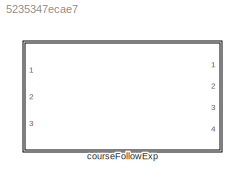
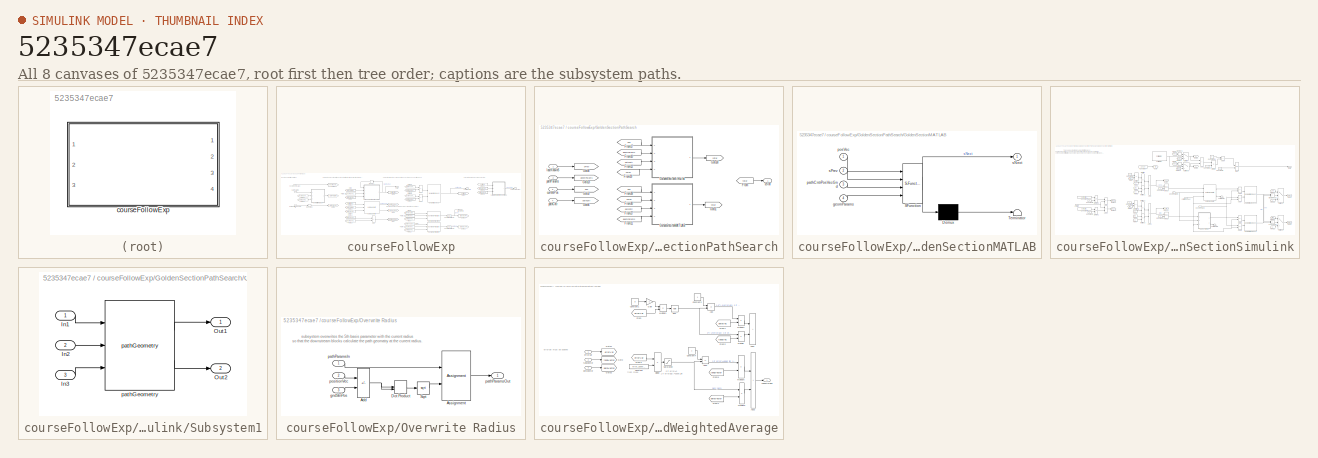
[diagram: thumbnail index - all 8 canvases of the model, root first then tree order]
MODEL slx_5235347ecae7
KIND library
CONFIG AbsTol = auto
CONFIG EnableMultiTasking = off
CONFIG FixedStep = auto
CONFIG MaxStep = auto
CONFIG MinStep = auto
CONFIG RelTol = 1e-3
CONFIG SampleTimeConstraint = Unconstrained
CONFIG Solver = VariableStepAuto
CONFIG SolverName = VariableStepAuto
CONFIG StartTime = 0.0
CONFIG StopTime = 10.0
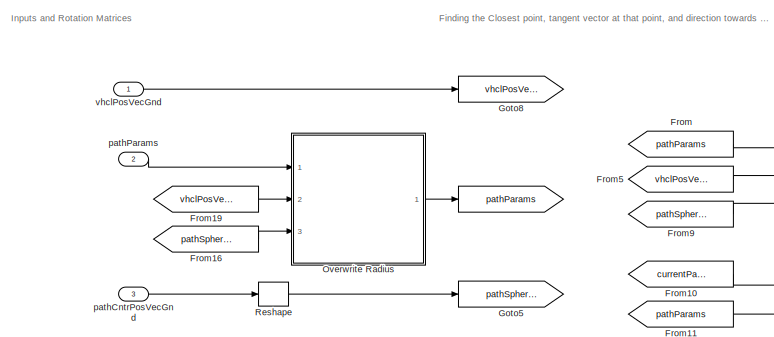
[diagram: courseFollowExp - part 1/3, top left region]
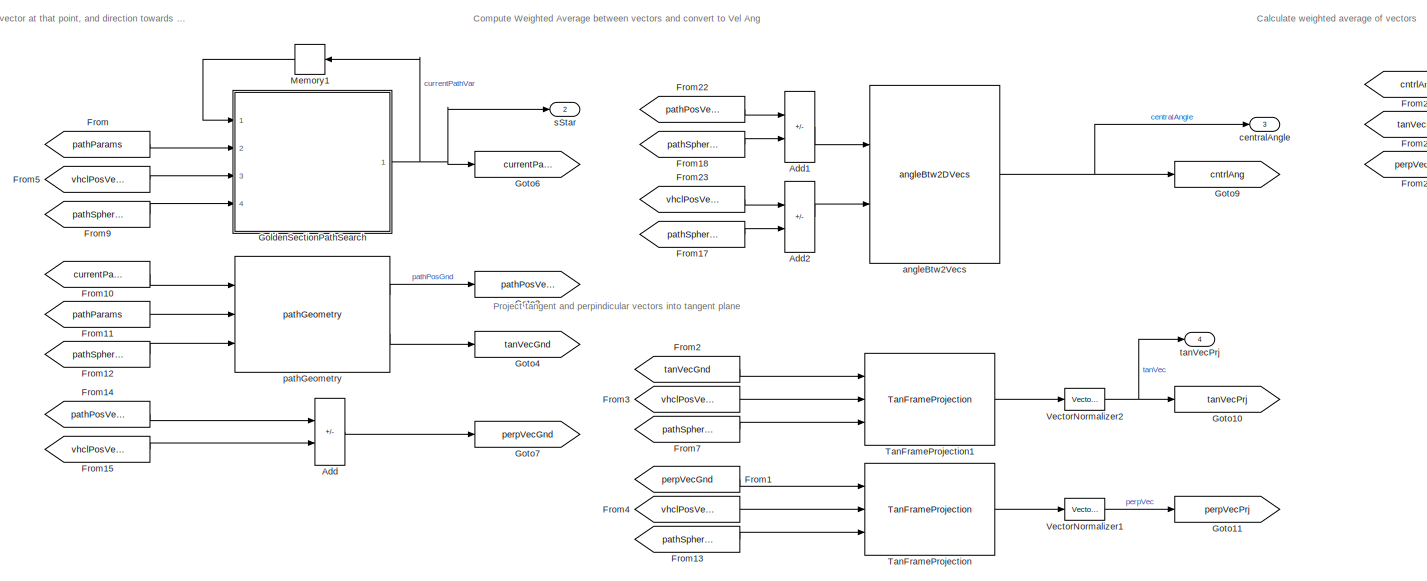
[diagram: courseFollowExp - part 2/3, center side, full height]
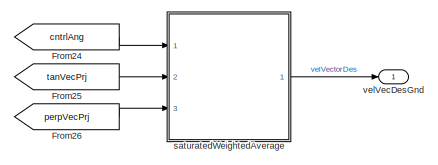
[diagram: courseFollowExp - part 3/3, top right region]
BLOCK [SubSystem] courseFollowExp
  Ports = [3, 4]
  RequestExecContextInheritance = off
BLOCK [Goto] courseFollowExp/ 
  GotoTag = pathParams
BLOCK [Sum] courseFollowExp/Add
  IconShape = rectangular
  Inputs = +-
  Ports = [2, 1]
BLOCK [Sum] courseFollowExp/Add1
  IconShape = rectangular
  Inputs = +-
  Ports = [2, 1]
BLOCK [Sum] courseFollowExp/Add2
  IconShape = rectangular
  Inputs = +-
  Ports = [2, 1]
BLOCK [From] courseFollowExp/From
  GotoTag = pathParams
BLOCK [From] courseFollowExp/From1
  GotoTag = perpVecGnd
BLOCK [From] courseFollowExp/From10
  GotoTag = currentPathVar
BLOCK [From] courseFollowExp/From11
  GotoTag = pathParams
BLOCK [From] courseFollowExp/From12
  GotoTag = pathSphereCntr
BLOCK [From] courseFollowExp/From13
  GotoTag = pathSphereCntr
BLOCK [From] courseFollowExp/From14
  GotoTag = pathPosVecGnd
BLOCK [From] courseFollowExp/From15
  GotoTag = vhclPosVecGnd
BLOCK [From] courseFollowExp/From16
  GotoTag = pathSphereCntr
BLOCK [From] courseFollowExp/From17
  GotoTag = pathSphereCntr
BLOCK [From] courseFollowExp/From18
  GotoTag = pathSphereCntr
BLOCK [From] courseFollowExp/From19
  GotoTag = vhclPosVecGnd
BLOCK [From] courseFollowExp/From2
  GotoTag = tanVecGnd
BLOCK [From] courseFollowExp/From22
  GotoTag = pathPosVecGnd
BLOCK [From] courseFollowExp/From23
  GotoTag = vhclPosVecGnd
BLOCK [From] courseFollowExp/From24
  GotoTag = cntrlAng
BLOCK [From] courseFollowExp/From25
  GotoTag = tanVecPrj
BLOCK [From] courseFollowExp/From26
  GotoTag = perpVecPrj
BLOCK [From] courseFollowExp/From3
  GotoTag = vhclPosVecGnd
BLOCK [From] courseFollowExp/From4
  GotoTag = vhclPosVecGnd
BLOCK [From] courseFollowExp/From5
  GotoTag = vhclPosVecGnd
BLOCK [From] courseFollowExp/From7
  GotoTag = pathSphereCntr
BLOCK [From] courseFollowExp/From9
  GotoTag = pathSphereCntr
BLOCK [SubSystem] courseFollowExp/GoldenSectionPathSearch
  Ports = [4, 1]
  RequestExecContextInheritance = off
  TreatAsAtomicUnit = on
BLOCK [From] courseFollowExp/GoldenSectionPathSearch/From
  GotoTag = sStar
BLOCK [From] courseFollowExp/GoldenSectionPathSearch/From10
  GotoTag = geomParams
BLOCK [From] courseFollowExp/GoldenSectionPathSearch/From11
  Commented = on
  GotoTag = geomParams
BLOCK [From] courseFollowExp/GoldenSectionPathSearch/From12
  GotoTag = pathCntr
BLOCK [From] courseFollowExp/GoldenSectionPathSearch/From17
  GotoTag = pos
BLOCK [From] courseFollowExp/GoldenSectionPathSearch/From27
  Commented = on
  GotoTag = pathCntr
BLOCK [From] courseFollowExp/GoldenSectionPathSearch/From28
  Commented = on
  GotoTag = pos
BLOCK [From] courseFollowExp/GoldenSectionPathSearch/From29
  GotoTag = sPrev
BLOCK [From] courseFollowExp/GoldenSectionPathSearch/From30
  Commented = on
  GotoTag = sPrev
BLOCK [SubSystem] courseFollowExp/GoldenSectionPathSearch/GoldenSectionMATLAB
  Commented = on
  ErrorFcn = Stateflow.Translate.translate
  PermitHierarchicalResolution = ExplicitOnly
  Ports = [4, 1]
  RequestExecContextInheritance = off
  SFBlockType = MATLAB Function
  TreatAsAtomicUnit = on
BLOCK [Demux] courseFollowExp/GoldenSectionPathSearch/GoldenSectionMATLAB/ Demux 
  Outputs = 1
  Ports = [1, 1]
BLOCK [S-Function] courseFollowExp/GoldenSectionPathSearch/GoldenSectionMATLAB/ SFunction 
  EnableBusSupport = off
  FunctionName = sf_sfun
  Parameters = pathVarTol,searchWidth
  PortCounts = [4 2]
  Ports = [4, 2]
  SFcnIsStateOwnerBlock = off
  SFunctionDeploymentMode = off
  Tag = Stateflow S-Function 2
BLOCK [Terminator] courseFollowExp/GoldenSectionPathSearch/GoldenSectionMATLAB/ Terminator 
BLOCK [Inport] courseFollowExp/GoldenSectionPathSearch/GoldenSectionMATLAB/geomParams
  Port = 4
BLOCK [Inport] courseFollowExp/GoldenSectionPathSearch/GoldenSectionMATLAB/pathCntrPosVecGnd
  Port = 3
BLOCK [Inport] courseFollowExp/GoldenSectionPathSearch/GoldenSectionMATLAB/posVec
BLOCK [Outport] courseFollowExp/GoldenSectionPathSearch/GoldenSectionMATLAB/sNext
BLOCK [Inport] courseFollowExp/GoldenSectionPathSearch/GoldenSectionMATLAB/sPrev
  Port = 2
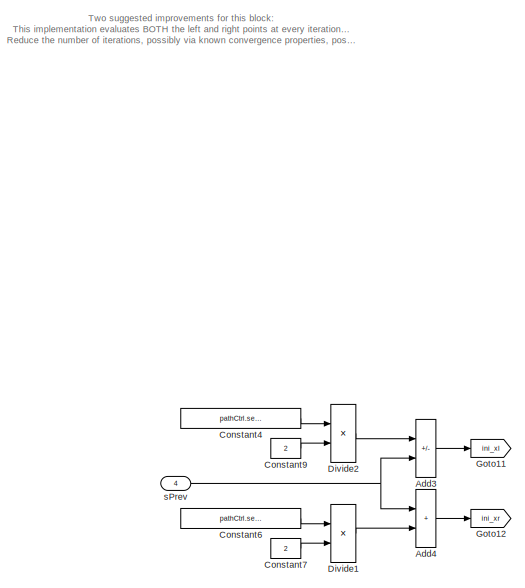
[diagram: courseFollowExp/GoldenSectionPathSearch/GoldenSectionSimulink - part 1/2, left side, full height]
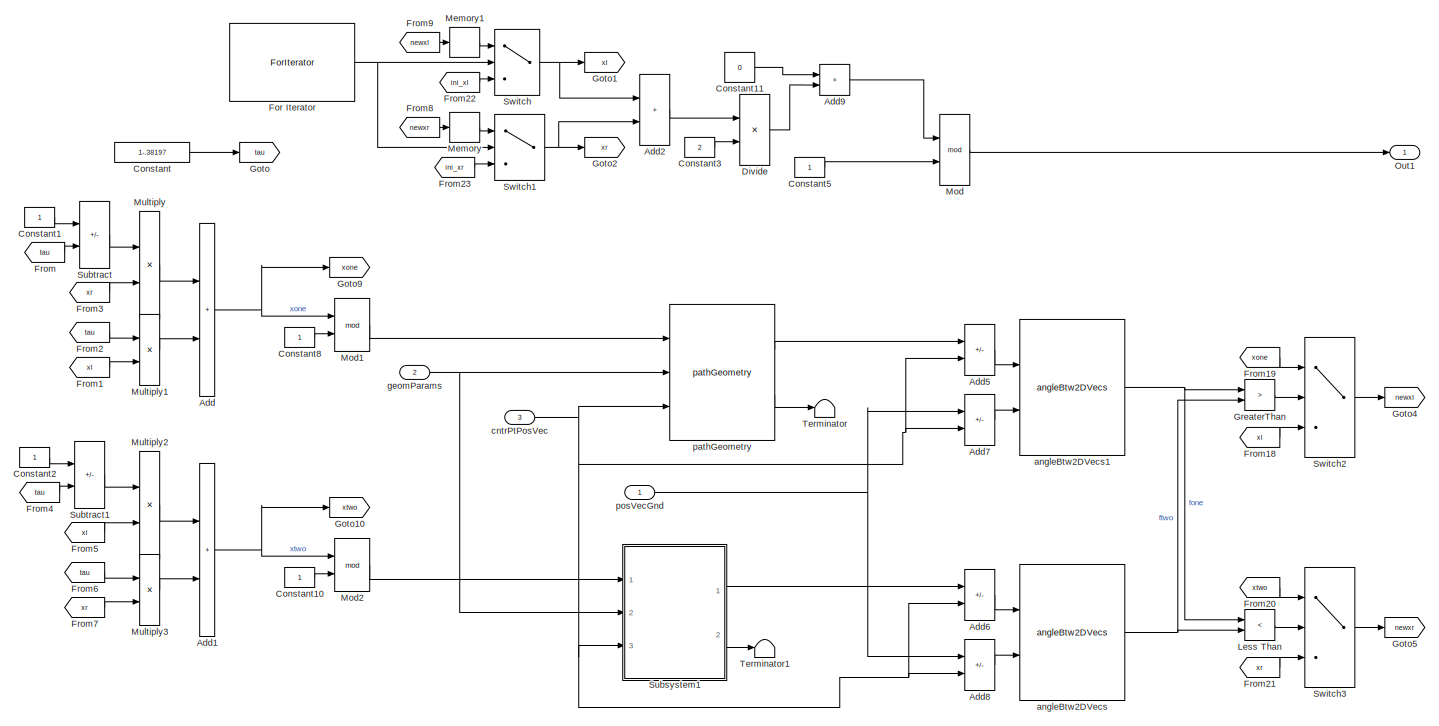
[diagram: courseFollowExp/GoldenSectionPathSearch/GoldenSectionSimulink - part 2/2, center side, full height]
BLOCK [SubSystem] courseFollowExp/GoldenSectionPathSearch/GoldenSectionSimulink
  Ports = [4, 1]
  RequestExecContextInheritance = off
BLOCK [Sum] courseFollowExp/GoldenSectionPathSearch/GoldenSectionSimulink/Add
  IconShape = rectangular
  Ports = [2, 1]
BLOCK [Sum] courseFollowExp/GoldenSectionPathSearch/GoldenSectionSimulink/Add1
  IconShape = rectangular
  Ports = [2, 1]
BLOCK [Sum] courseFollowExp/GoldenSectionPathSearch/GoldenSectionSimulink/Add2
  IconShape = rectangular
  Ports = [2, 1]
BLOCK [Sum] courseFollowExp/GoldenSectionPathSearch/GoldenSectionSimulink/Add3
  IconShape = rectangular
  Inputs = -+
  Ports = [2, 1]
BLOCK [Sum] courseFollowExp/GoldenSectionPathSearch/GoldenSectionSimulink/Add4
  IconShape = rectangular
  Ports = [2, 1]
BLOCK [Sum] courseFollowExp/GoldenSectionPathSearch/GoldenSectionSimulink/Add5
  IconShape = rectangular
  Inputs = +-
  Ports = [2, 1]
BLOCK [Sum] courseFollowExp/GoldenSectionPathSearch/GoldenSectionSimulink/Add6
  IconShape = rectangular
  Inputs = +-
  Ports = [2, 1]
BLOCK [Sum] courseFollowExp/GoldenSectionPathSearch/GoldenSectionSimulink/Add7
  IconShape = rectangular
  Inputs = +-
  Ports = [2, 1]
BLOCK [Sum] courseFollowExp/GoldenSectionPathSearch/GoldenSectionSimulink/Add8
  IconShape = rectangular
  Inputs = +-
  Ports = [2, 1]
BLOCK [Sum] courseFollowExp/GoldenSectionPathSearch/GoldenSectionSimulink/Add9
  IconShape = rectangular
  Ports = [2, 1]
BLOCK [Constant] courseFollowExp/GoldenSectionPathSearch/GoldenSectionSimulink/Constant
  Value = 1-.38197
BLOCK [Constant] courseFollowExp/GoldenSectionPathSearch/GoldenSectionSimulink/Constant1
BLOCK [Constant] courseFollowExp/GoldenSectionPathSearch/GoldenSectionSimulink/Constant10
BLOCK [Constant] courseFollowExp/GoldenSectionPathSearch/GoldenSectionSimulink/Constant11
  Value = 0
BLOCK [Constant] courseFollowExp/GoldenSectionPathSearch/GoldenSectionSimulink/Constant2
BLOCK [Constant] courseFollowExp/GoldenSectionPathSearch/GoldenSectionSimulink/Constant3
  Value = 2
BLOCK [Constant] courseFollowExp/GoldenSectionPathSearch/GoldenSectionSimulink/Constant4
  Value = pathCtrl.searchSize.Value
BLOCK [Constant] courseFollowExp/GoldenSectionPathSearch/GoldenSectionSimulink/Constant5
BLOCK [Constant] courseFollowExp/GoldenSectionPathSearch/GoldenSectionSimulink/Constant6
  Value = pathCtrl.searchSize.Value
BLOCK [Constant] courseFollowExp/GoldenSectionPathSearch/GoldenSectionSimulink/Constant7
  Value = 2
BLOCK [Constant] courseFollowExp/GoldenSectionPathSearch/GoldenSectionSimulink/Constant8
BLOCK [Constant] courseFollowExp/GoldenSectionPathSearch/GoldenSectionSimulink/Constant9
  Value = 2
BLOCK [Product] courseFollowExp/GoldenSectionPathSearch/GoldenSectionSimulink/Divide
  Inputs = */
  Ports = [2, 1]
BLOCK [Product] courseFollowExp/GoldenSectionPathSearch/GoldenSectionSimulink/Divide1
  Inputs = */
  Ports = [2, 1]
BLOCK [Product] courseFollowExp/GoldenSectionPathSearch/GoldenSectionSimulink/Divide2
  Inputs = */
  Ports = [2, 1]
BLOCK [ForIterator] courseFollowExp/GoldenSectionPathSearch/GoldenSectionSimulink/For Iterator
  IterationLimit = 25
  Ports = [0, 1]
BLOCK [From] courseFollowExp/GoldenSectionPathSearch/GoldenSectionSimulink/From
  GotoTag = tau
BLOCK [From] courseFollowExp/GoldenSectionPathSearch/GoldenSectionSimulink/From1
  GotoTag = xl
BLOCK [From] courseFollowExp/GoldenSectionPathSearch/GoldenSectionSimulink/From18
  GotoTag = xl
BLOCK [From] courseFollowExp/GoldenSectionPathSearch/GoldenSectionSimulink/From19
  GotoTag = xone
BLOCK [From] courseFollowExp/GoldenSectionPathSearch/GoldenSectionSimulink/From2
  GotoTag = tau
BLOCK [From] courseFollowExp/GoldenSectionPathSearch/GoldenSectionSimulink/From20
  GotoTag = xtwo
BLOCK [From] courseFollowExp/GoldenSectionPathSearch/GoldenSectionSimulink/From21
  GotoTag = xr
BLOCK [From] courseFollowExp/GoldenSectionPathSearch/GoldenSectionSimulink/From22
  GotoTag = ini_xl
BLOCK [From] courseFollowExp/GoldenSectionPathSearch/GoldenSectionSimulink/From23
  GotoTag = ini_xr
BLOCK [From] courseFollowExp/GoldenSectionPathSearch/GoldenSectionSimulink/From3
  GotoTag = xr
BLOCK [From] courseFollowExp/GoldenSectionPathSearch/GoldenSectionSimulink/From4
  GotoTag = tau
BLOCK [From] courseFollowExp/GoldenSectionPathSearch/GoldenSectionSimulink/From5
  GotoTag = xl
BLOCK [From] courseFollowExp/GoldenSectionPathSearch/GoldenSectionSimulink/From6
  GotoTag = tau
BLOCK [From] courseFollowExp/GoldenSectionPathSearch/GoldenSectionSimulink/From7
  GotoTag = xr
BLOCK [From] courseFollowExp/GoldenSectionPathSearch/GoldenSectionSimulink/From8
  GotoTag = newxr
BLOCK [From] courseFollowExp/GoldenSectionPathSearch/GoldenSectionSimulink/From9
  GotoTag = newxl
BLOCK [Goto] courseFollowExp/GoldenSectionPathSearch/GoldenSectionSimulink/Goto
  GotoTag = tau
BLOCK [Goto] courseFollowExp/GoldenSectionPathSearch/GoldenSectionSimulink/Goto1
  GotoTag = xl
BLOCK [Goto] courseFollowExp/GoldenSectionPathSearch/GoldenSectionSimulink/Goto10
  GotoTag = xtwo
BLOCK [Goto] courseFollowExp/GoldenSectionPathSearch/GoldenSectionSimulink/Goto11
  GotoTag = ini_xl
BLOCK [Goto] courseFollowExp/GoldenSectionPathSearch/GoldenSectionSimulink/Goto12
  GotoTag = ini_xr
BLOCK [Goto] courseFollowExp/GoldenSectionPathSearch/GoldenSectionSimulink/Goto2
  GotoTag = xr
BLOCK [Goto] courseFollowExp/GoldenSectionPathSearch/GoldenSectionSimulink/Goto4
  GotoTag = newxl
BLOCK [Goto] courseFollowExp/GoldenSectionPathSearch/GoldenSectionSimulink/Goto5
  GotoTag = newxr
BLOCK [Goto] courseFollowExp/GoldenSectionPathSearch/GoldenSectionSimulink/Goto9
  GotoTag = xone
BLOCK [RelationalOperator] courseFollowExp/GoldenSectionPathSearch/GoldenSectionSimulink/GreaterThan
  InputSameDT = off
  Operator = >
  OutDataTypeStr = boolean
  Ports = [2, 1]
  RndMeth = Simplest
BLOCK [RelationalOperator] courseFollowExp/GoldenSectionPathSearch/GoldenSectionSimulink/Less Than
  InputSameDT = off
  Operator = <
  OutDataTypeStr = boolean
  Ports = [2, 1]
  RndMeth = Simplest
BLOCK [Memory] courseFollowExp/GoldenSectionPathSearch/GoldenSectionSimulink/Memory
  InheritSampleTime = on
BLOCK [Memory] courseFollowExp/GoldenSectionPathSearch/GoldenSectionSimulink/Memory1
  InheritSampleTime = on
BLOCK [Math] courseFollowExp/GoldenSectionPathSearch/GoldenSectionSimulink/Mod
  Operator = mod
  Ports = [2, 1]
  SignedPower = on
BLOCK [Math] courseFollowExp/GoldenSectionPathSearch/GoldenSectionSimulink/Mod1
  Operator = mod
  Ports = [2, 1]
  SignedPower = on
BLOCK [Math] courseFollowExp/GoldenSectionPathSearch/GoldenSectionSimulink/Mod2
  Operator = mod
  Ports = [2, 1]
  SignedPower = on
BLOCK [Product] courseFollowExp/GoldenSectionPathSearch/GoldenSectionSimulink/Multiply
  Ports = [2, 1]
BLOCK [Product] courseFollowExp/GoldenSectionPathSearch/GoldenSectionSimulink/Multiply1
  Ports = [2, 1]
BLOCK [Product] courseFollowExp/GoldenSectionPathSearch/GoldenSectionSimulink/Multiply2
  Ports = [2, 1]
BLOCK [Product] courseFollowExp/GoldenSectionPathSearch/GoldenSectionSimulink/Multiply3
  Ports = [2, 1]
BLOCK [Outport] courseFollowExp/GoldenSectionPathSearch/GoldenSectionSimulink/Out1
BLOCK [SubSystem] courseFollowExp/GoldenSectionPathSearch/GoldenSectionSimulink/Subsystem1
  Ports = [3, 2]
  RequestExecContextInheritance = off
BLOCK [Inport] courseFollowExp/GoldenSectionPathSearch/GoldenSectionSimulink/Subsystem1/In1
BLOCK [Inport] courseFollowExp/GoldenSectionPathSearch/GoldenSectionSimulink/Subsystem1/In2
  Port = 2
BLOCK [Inport] courseFollowExp/GoldenSectionPathSearch/GoldenSectionSimulink/Subsystem1/In3
  Port = 3
BLOCK [Outport] courseFollowExp/GoldenSectionPathSearch/GoldenSectionSimulink/Subsystem1/Out1
  VectorParamsAs1DForOutWhenUnconnected = off
BLOCK [Outport] courseFollowExp/GoldenSectionPathSearch/GoldenSectionSimulink/Subsystem1/Out2
  Port = 2
  VectorParamsAs1DForOutWhenUnconnected = off
BLOCK [Reference] courseFollowExp/GoldenSectionPathSearch/GoldenSectionSimulink/Subsystem1/pathGeometry  REF=pathGeometry_ul/pathGeometry
  Ports = [3, 2]
  SourceBlock = pathGeometry_ul/pathGeometry
  SourceType = SubSystem
BLOCK [Sum] courseFollowExp/GoldenSectionPathSearch/GoldenSectionSimulink/Subtract
  IconShape = rectangular
  Inputs = +-
  Ports = [2, 1]
BLOCK [Sum] courseFollowExp/GoldenSectionPathSearch/GoldenSectionSimulink/Subtract1
  IconShape = rectangular
  Inputs = +-
  Ports = [2, 1]
BLOCK [Switch] courseFollowExp/GoldenSectionPathSearch/GoldenSectionSimulink/Switch
  Criteria = u2 > Threshold
  InputSameDT = off
  SaturateOnIntegerOverflow = off
  Threshold = 1
BLOCK [Switch] courseFollowExp/GoldenSectionPathSearch/GoldenSectionSimulink/Switch1
  Criteria = u2 > Threshold
  InputSameDT = off
  SaturateOnIntegerOverflow = off
  Threshold = 1
BLOCK [Switch] courseFollowExp/GoldenSectionPathSearch/GoldenSectionSimulink/Switch2
  Criteria = u2 > Threshold
  InputSameDT = off
  SaturateOnIntegerOverflow = off
BLOCK [Switch] courseFollowExp/GoldenSectionPathSearch/GoldenSectionSimulink/Switch3
  Criteria = u2 > Threshold
  InputSameDT = off
  SaturateOnIntegerOverflow = off
BLOCK [Terminator] courseFollowExp/GoldenSectionPathSearch/GoldenSectionSimulink/Terminator
BLOCK [Terminator] courseFollowExp/GoldenSectionPathSearch/GoldenSectionSimulink/Terminator1
BLOCK [Reference] courseFollowExp/GoldenSectionPathSearch/GoldenSectionSimulink/angleBtw2DVecs  REF=angleBtw2Vecs_ul/angleBtw2DVecs
  Ports = [2, 1]
  SourceBlock = angleBtw2Vecs_ul/angleBtw2DVecs
  SourceType = SubSystem
BLOCK [Reference] courseFollowExp/GoldenSectionPathSearch/GoldenSectionSimulink/angleBtw2DVecs1  REF=angleBtw2Vecs_ul/angleBtw2DVecs
  Ports = [2, 1]
  SourceBlock = angleBtw2Vecs_ul/angleBtw2DVecs
  SourceType = SubSystem
BLOCK [Inport] courseFollowExp/GoldenSectionPathSearch/GoldenSectionSimulink/cntrPtPosVec
  Port = 3
BLOCK [Inport] courseFollowExp/GoldenSectionPathSearch/GoldenSectionSimulink/geomParams
  Port = 2
BLOCK [Reference] courseFollowExp/GoldenSectionPathSearch/GoldenSectionSimulink/pathGeometry  REF=pathGeometry_ul/pathGeometry
  Ports = [3, 2]
  SourceBlock = pathGeometry_ul/pathGeometry
  SourceType = SubSystem
BLOCK [Inport] courseFollowExp/GoldenSectionPathSearch/GoldenSectionSimulink/posVecGnd
BLOCK [Inport] courseFollowExp/GoldenSectionPathSearch/GoldenSectionSimulink/sPrev
  Port = 4
BLOCK [Goto] courseFollowExp/GoldenSectionPathSearch/Goto1
  Commented = on
  GotoTag = sStar
BLOCK [Goto] courseFollowExp/GoldenSectionPathSearch/Goto13
  GotoTag = geomParams
BLOCK [Goto] courseFollowExp/GoldenSectionPathSearch/Goto14
  GotoTag = sStar
BLOCK [Goto] courseFollowExp/GoldenSectionPathSearch/Goto3
  GotoTag = pos
BLOCK [Goto] courseFollowExp/GoldenSectionPathSearch/Goto6
  GotoTag = pathCntr
BLOCK [Goto] courseFollowExp/GoldenSectionPathSearch/Goto8
  GotoTag = sPrev
BLOCK [Inport] courseFollowExp/GoldenSectionPathSearch/currentPos
  Port = 3
BLOCK [Inport] courseFollowExp/GoldenSectionPathSearch/lastKnownS
BLOCK [Inport] courseFollowExp/GoldenSectionPathSearch/pathCntr
  Port = 4
BLOCK [Inport] courseFollowExp/GoldenSectionPathSearch/pathParams
  Port = 2
BLOCK [Outport] courseFollowExp/GoldenSectionPathSearch/sStar
  InitialOutput = pathCtrl.initPathVar.Value
  VectorParamsAs1DForOutWhenUnconnected = off
BLOCK [Goto] courseFollowExp/Goto10
  GotoTag = tanVecPrj
BLOCK [Goto] courseFollowExp/Goto11
  GotoTag = perpVecPrj
BLOCK [Goto] courseFollowExp/Goto2
  GotoTag = pathPosVecGnd
BLOCK [Goto] courseFollowExp/Goto4
  GotoTag = tanVecGnd
BLOCK [Goto] courseFollowExp/Goto5
  GotoTag = pathSphereCntr
BLOCK [Goto] courseFollowExp/Goto6
  GotoTag = currentPathVar
BLOCK [Goto] courseFollowExp/Goto7
  GotoTag = perpVecGnd
BLOCK [Goto] courseFollowExp/Goto8
  GotoTag = vhclPosVecGnd
BLOCK [Goto] courseFollowExp/Goto9
  GotoTag = cntrlAng
BLOCK [Memory] courseFollowExp/Memory1
  InitialCondition = pathCtrl.initPathVar.Value
BLOCK [SubSystem] courseFollowExp/Overwrite Radius
  Ports = [3, 1]
  RequestExecContextInheritance = off
BLOCK [Sum] courseFollowExp/Overwrite Radius/Add
  IconShape = rectangular
  Inputs = +-
  Ports = [2, 1]
BLOCK [Assignment] courseFollowExp/Overwrite Radius/Assignment
  DiagnosticForDimensions = Warning
  IndexOptions = Index vector (dialog),Assign all
  Indices = 5,5
  NumberOfDimensions = 2
  OutputSizes = 1,1
  Ports = [2, 1]
BLOCK [DotProduct] courseFollowExp/Overwrite Radius/Dot Product
  OutDataTypeStr = Inherit: Inherit via internal rule
BLOCK [Sqrt] courseFollowExp/Overwrite Radius/Sqrt
BLOCK [Inport] courseFollowExp/Overwrite Radius/gndStnPos
  Port = 3
BLOCK [Inport] courseFollowExp/Overwrite Radius/pathParamsIn
BLOCK [Outport] courseFollowExp/Overwrite Radius/pathParamsOut
  VectorParamsAs1DForOutWhenUnconnected = off
BLOCK [Inport] courseFollowExp/Overwrite Radius/positionVec
  Port = 2
BLOCK [Reshape] courseFollowExp/Reshape
  OutputDimensionality = Column vector (2-D)
  Ports = [1, 1]
BLOCK [Reference] courseFollowExp/TanFrameProjection  REF=tanFrameProjection_ul/TanFrameProjection
  Ports = [3, 1]
  SourceBlock = tanFrameProjection_ul/TanFrameProjection
  SourceType = SubSystem
BLOCK [Reference] courseFollowExp/TanFrameProjection1  REF=tanFrameProjection_ul/TanFrameProjection
  Ports = [3, 1]
  SourceBlock = tanFrameProjection_ul/TanFrameProjection
  SourceType = SubSystem
BLOCK [Reference] courseFollowExp/VectorNormalizer1  REF=vectorNormalizer_ul/VectorNormalizer

  Ports = [1, 1]
  SourceBlock = vectorNormalizer_ul/VectorNormalizer
  SourceType = SubSystem
BLOCK [Reference] courseFollowExp/VectorNormalizer2  REF=vectorNormalizer_ul/VectorNormalizer

  Ports = [1, 1]
  SourceBlock = vectorNormalizer_ul/VectorNormalizer
  SourceType = SubSystem
BLOCK [Reference] courseFollowExp/angleBtw2Vecs  REF=angleBtw2Vecs_ul/angleBtw2DVecs
  Ports = [2, 1]
  SourceBlock = angleBtw2Vecs_ul/angleBtw2DVecs
  SourceType = SubSystem
BLOCK [Outport] courseFollowExp/centralAngle
  Port = 3
  VectorParamsAs1DForOutWhenUnconnected = off
BLOCK [Inport] courseFollowExp/pathCntrPosVecGnd
  Port = 3
BLOCK [Reference] courseFollowExp/pathGeometry  REF=pathGeometry_ul/pathGeometry
  Ports = [3, 2]
  SourceBlock = pathGeometry_ul/pathGeometry
  SourceType = SubSystem
BLOCK [Inport] courseFollowExp/pathParams
  Port = 2
BLOCK [Outport] courseFollowExp/sStar
  Port = 2
  VectorParamsAs1DForOutWhenUnconnected = off
BLOCK [SubSystem] courseFollowExp/saturatedWeightedAverage
  Ports = [3, 1]
  RequestExecContextInheritance = off
BLOCK [Sum] courseFollowExp/saturatedWeightedAverage/Add
  Commented = on
  IconShape = rectangular
  Inputs = +-
  Ports = [2, 1]
BLOCK [Sum] courseFollowExp/saturatedWeightedAverage/Add1
  Commented = on
  IconShape = rectangular
  Ports = [2, 1]
BLOCK [Sum] courseFollowExp/saturatedWeightedAverage/Add2
  IconShape = rectangular
  Inputs = +-
  Ports = [2, 1]
BLOCK [Sum] courseFollowExp/saturatedWeightedAverage/Add3
  IconShape = rectangular
  Ports = [2, 1]
BLOCK [Constant] courseFollowExp/saturatedWeightedAverage/Constant
  Value = error_upper_lim
BLOCK [Constant] courseFollowExp/saturatedWeightedAverage/Constant1
  Commented = on
  Value = a
BLOCK [Constant] courseFollowExp/saturatedWeightedAverage/Constant2
  Commented = on
BLOCK [Constant] courseFollowExp/saturatedWeightedAverage/Constant4
BLOCK [Product] courseFollowExp/saturatedWeightedAverage/Divide
  Inputs = */
  Ports = [2, 1]
BLOCK [Math] courseFollowExp/saturatedWeightedAverage/Exp
  Commented = on
  Ports = [1, 1]
  SignedPower = on
BLOCK [From] courseFollowExp/saturatedWeightedAverage/From
  Commented = on
  GotoTag = errorVar
BLOCK [From] courseFollowExp/saturatedWeightedAverage/From1
  Commented = on
  GotoTag = perpVec
BLOCK [From] courseFollowExp/saturatedWeightedAverage/From2
  Commented = on
  GotoTag = tangVec
BLOCK [From] courseFollowExp/saturatedWeightedAverage/From3
  GotoTag = errorVar
BLOCK [From] courseFollowExp/saturatedWeightedAverage/From4
  GotoTag = perpVector
BLOCK [From] courseFollowExp/saturatedWeightedAverage/From6
  GotoTag = tangVector
BLOCK [Gain] courseFollowExp/saturatedWeightedAverage/Gain
  Commented = on
  Gain = -1
BLOCK [Goto] courseFollowExp/saturatedWeightedAverage/Goto
  GotoTag = tangVector
BLOCK [Goto] courseFollowExp/saturatedWeightedAverage/Goto1
  GotoTag = errorVar
BLOCK [Goto] courseFollowExp/saturatedWeightedAverage/Goto2
  GotoTag = perpVector
BLOCK [Product] courseFollowExp/saturatedWeightedAverage/Multiply
  Commented = on
  Ports = [2, 1]
BLOCK [Product] courseFollowExp/saturatedWeightedAverage/Multiply1
  Commented = on
  Ports = [2, 1]
BLOCK [Product] courseFollowExp/saturatedWeightedAverage/Multiply2
  Commented = on
  Ports = [2, 1]
BLOCK [Product] courseFollowExp/saturatedWeightedAverage/Multiply3
  Ports = [2, 1]
BLOCK [Product] courseFollowExp/saturatedWeightedAverage/Multiply5
  Ports = [2, 1]
BLOCK [Saturate] courseFollowExp/saturatedWeightedAverage/Saturation
  LowerLimit = 0
  UpperLimit = 1
BLOCK [Inport] courseFollowExp/saturatedWeightedAverage/errorVar 
BLOCK [Inport] courseFollowExp/saturatedWeightedAverage/perpVector 
  Port = 3
BLOCK [Inport] courseFollowExp/saturatedWeightedAverage/tangVector
  Port = 2
BLOCK [Outport] courseFollowExp/saturatedWeightedAverage/velVectorDes 
  VectorParamsAs1DForOutWhenUnconnected = off
BLOCK [Outport] courseFollowExp/tanVecPrj
  Port = 4
BLOCK [Outport] courseFollowExp/velVecDesGnd
  VectorParamsAs1DForOutWhenUnconnected = off
BLOCK [Inport] courseFollowExp/vhclPosVecGnd 
ANNOTATION courseFollowExp: Calculate weighted average of vectors
ANNOTATION courseFollowExp: Compute Weighted Average between vectors and convert to Vel Ang
ANNOTATION courseFollowExp: Finding the Closest point, tangent vector at that point, and direction towards that point
ANNOTATION courseFollowExp: Inputs and Rotation Matrices
ANNOTATION courseFollowExp: Project tangent and perpindicular vectors into tangent plane
ANNOTATION courseFollowExp/GoldenSectionPathSearch/GoldenSectionSimulink: Two suggested improvements for this block: This implementation evaluates BOTH the left and right points at every iteration, this is not neccessary with golden section Reduce the number of iterations, possibly via known convergence properties, possibly via break condition
ANNOTATION courseFollowExp/Overwrite Radius: subsystem overwrites the 5th basis parameter with the current radius so that the downstream blocks calculate the path geomatry at the current radius.
ANNOTATION courseFollowExp/saturatedWeightedAverage: 0 if error=0 1 if error>=upper_lim
ANNOTATION courseFollowExp/saturatedWeightedAverage: errorVar must be positive
ANNOTATION courseFollowExp/saturatedWeightedAverage: from mask
LINE courseFollowExp/Add1:1 -> courseFollowExp/angleBtw2Vecs:1
LINE courseFollowExp/Add2:1 -> courseFollowExp/angleBtw2Vecs:2
LINE courseFollowExp/Add:1 -> courseFollowExp/Goto7:1
LINE courseFollowExp/From10:1 -> courseFollowExp/pathGeometry:1
LINE courseFollowExp/From11:1 -> courseFollowExp/pathGeometry:2
LINE courseFollowExp/From12:1 -> courseFollowExp/pathGeometry:3
LINE courseFollowExp/From13:1 -> courseFollowExp/TanFrameProjection:3
LINE courseFollowExp/From14:1 -> courseFollowExp/Add:1
LINE courseFollowExp/From15:1 -> courseFollowExp/Add:2
LINE courseFollowExp/From16:1 -> courseFollowExp/Overwrite Radius:3
LINE courseFollowExp/From17:1 -> courseFollowExp/Add2:2
LINE courseFollowExp/From18:1 -> courseFollowExp/Add1:2
LINE courseFollowExp/From19:1 -> courseFollowExp/Overwrite Radius:2
LINE courseFollowExp/From1:1 -> courseFollowExp/TanFrameProjection:1
LINE courseFollowExp/From22:1 -> courseFollowExp/Add1:1
LINE courseFollowExp/From23:1 -> courseFollowExp/Add2:1
LINE courseFollowExp/From24:1 -> courseFollowExp/saturatedWeightedAverage:1
LINE courseFollowExp/From25:1 -> courseFollowExp/saturatedWeightedAverage:2
LINE courseFollowExp/From26:1 -> courseFollowExp/saturatedWeightedAverage:3
LINE courseFollowExp/From2:1 -> courseFollowExp/TanFrameProjection1:1
LINE courseFollowExp/From3:1 -> courseFollowExp/TanFrameProjection1:2
LINE courseFollowExp/From4:1 -> courseFollowExp/TanFrameProjection:2
LINE courseFollowExp/From5:1 -> courseFollowExp/GoldenSectionPathSearch:3
LINE courseFollowExp/From7:1 -> courseFollowExp/TanFrameProjection1:3
LINE courseFollowExp/From9:1 -> courseFollowExp/GoldenSectionPathSearch:4
LINE courseFollowExp/From:1 -> courseFollowExp/GoldenSectionPathSearch:2
LINE courseFollowExp/GoldenSectionPathSearch/From10:1 -> courseFollowExp/GoldenSectionPathSearch/GoldenSectionSimulink:2
LINE courseFollowExp/GoldenSectionPathSearch/From11:1 -> courseFollowExp/GoldenSectionPathSearch/GoldenSectionMATLAB:4
LINE courseFollowExp/GoldenSectionPathSearch/From12:1 -> courseFollowExp/GoldenSectionPathSearch/GoldenSectionSimulink:3
LINE courseFollowExp/GoldenSectionPathSearch/From17:1 -> courseFollowExp/GoldenSectionPathSearch/GoldenSectionSimulink:1
LINE courseFollowExp/GoldenSectionPathSearch/From27:1 -> courseFollowExp/GoldenSectionPathSearch/GoldenSectionMATLAB:3
LINE courseFollowExp/GoldenSectionPathSearch/From28:1 -> courseFollowExp/GoldenSectionPathSearch/GoldenSectionMATLAB:1
LINE courseFollowExp/GoldenSectionPathSearch/From29:1 -> courseFollowExp/GoldenSectionPathSearch/GoldenSectionSimulink:4
LINE courseFollowExp/GoldenSectionPathSearch/From30:1 -> courseFollowExp/GoldenSectionPathSearch/GoldenSectionMATLAB:2
LINE courseFollowExp/GoldenSectionPathSearch/From:1 -> courseFollowExp/GoldenSectionPathSearch/sStar:1
LINE courseFollowExp/GoldenSectionPathSearch/GoldenSectionMATLAB:1 -> courseFollowExp/GoldenSectionPathSearch/Goto1:1
NET courseFollowExp/GoldenSectionPathSearch/GoldenSectionSimulink/Add1:1 -> courseFollowExp/GoldenSectionPathSearch/GoldenSectionSimulink/Goto10:1, courseFollowExp/GoldenSectionPathSearch/GoldenSectionSimulink/Mod2:1
LINE courseFollowExp/GoldenSectionPathSearch/GoldenSectionSimulink/Add2:1 -> courseFollowExp/GoldenSectionPathSearch/GoldenSectionSimulink/Divide:1
LINE courseFollowExp/GoldenSectionPathSearch/GoldenSectionSimulink/Add3:1 -> courseFollowExp/GoldenSectionPathSearch/GoldenSectionSimulink/Goto11:1
LINE courseFollowExp/GoldenSectionPathSearch/GoldenSectionSimulink/Add4:1 -> courseFollowExp/GoldenSectionPathSearch/GoldenSectionSimulink/Goto12:1
LINE courseFollowExp/GoldenSectionPathSearch/GoldenSectionSimulink/Add5:1 -> courseFollowExp/GoldenSectionPathSearch/GoldenSectionSimulink/angleBtw2DVecs1:1
LINE courseFollowExp/GoldenSectionPathSearch/GoldenSectionSimulink/Add6:1 -> courseFollowExp/GoldenSectionPathSearch/GoldenSectionSimulink/angleBtw2DVecs:1
LINE courseFollowExp/GoldenSectionPathSearch/GoldenSectionSimulink/Add7:1 -> courseFollowExp/GoldenSectionPathSearch/GoldenSectionSimulink/angleBtw2DVecs1:2
LINE courseFollowExp/GoldenSectionPathSearch/GoldenSectionSimulink/Add8:1 -> courseFollowExp/GoldenSectionPathSearch/GoldenSectionSimulink/angleBtw2DVecs:2
LINE courseFollowExp/GoldenSectionPathSearch/GoldenSectionSimulink/Add9:1 -> courseFollowExp/GoldenSectionPathSearch/GoldenSectionSimulink/Mod:1
NET courseFollowExp/GoldenSectionPathSearch/GoldenSectionSimulink/Add:1 -> courseFollowExp/GoldenSectionPathSearch/GoldenSectionSimulink/Goto9:1, courseFollowExp/GoldenSectionPathSearch/GoldenSectionSimulink/Mod1:1
LINE courseFollowExp/GoldenSectionPathSearch/GoldenSectionSimulink/Constant10:1 -> courseFollowExp/GoldenSectionPathSearch/GoldenSectionSimulink/Mod2:2
LINE courseFollowExp/GoldenSectionPathSearch/GoldenSectionSimulink/Constant11:1 -> courseFollowExp/GoldenSectionPathSearch/GoldenSectionSimulink/Add9:1
LINE courseFollowExp/GoldenSectionPathSearch/GoldenSectionSimulink/Constant1:1 -> courseFollowExp/GoldenSectionPathSearch/GoldenSectionSimulink/Subtract:1
LINE courseFollowExp/GoldenSectionPathSearch/GoldenSectionSimulink/Constant2:1 -> courseFollowExp/GoldenSectionPathSearch/GoldenSectionSimulink/Subtract1:1
LINE courseFollowExp/GoldenSectionPathSearch/GoldenSectionSimulink/Constant3:1 -> courseFollowExp/GoldenSectionPathSearch/GoldenSectionSimulink/Divide:2
LINE courseFollowExp/GoldenSectionPathSearch/GoldenSectionSimulink/Constant4:1 -> courseFollowExp/GoldenSectionPathSearch/GoldenSectionSimulink/Divide2:1
LINE courseFollowExp/GoldenSectionPathSearch/GoldenSectionSimulink/Constant5:1 -> courseFollowExp/GoldenSectionPathSearch/GoldenSectionSimulink/Mod:2
LINE courseFollowExp/GoldenSectionPathSearch/GoldenSectionSimulink/Constant6:1 -> courseFollowExp/GoldenSectionPathSearch/GoldenSectionSimulink/Divide1:1
LINE courseFollowExp/GoldenSectionPathSearch/GoldenSectionSimulink/Constant7:1 -> courseFollowExp/GoldenSectionPathSearch/GoldenSectionSimulink/Divide1:2
LINE courseFollowExp/GoldenSectionPathSearch/GoldenSectionSimulink/Constant8:1 -> courseFollowExp/GoldenSectionPathSearch/GoldenSectionSimulink/Mod1:2
LINE courseFollowExp/GoldenSectionPathSearch/GoldenSectionSimulink/Constant9:1 -> courseFollowExp/GoldenSectionPathSearch/GoldenSectionSimulink/Divide2:2
LINE courseFollowExp/GoldenSectionPathSearch/GoldenSectionSimulink/Constant:1 -> courseFollowExp/GoldenSectionPathSearch/GoldenSectionSimulink/Goto:1
LINE courseFollowExp/GoldenSectionPathSearch/GoldenSectionSimulink/Divide1:1 -> courseFollowExp/GoldenSectionPathSearch/GoldenSectionSimulink/Add4:2
LINE courseFollowExp/GoldenSectionPathSearch/GoldenSectionSimulink/Divide2:1 -> courseFollowExp/GoldenSectionPathSearch/GoldenSectionSimulink/Add3:1
LINE courseFollowExp/GoldenSectionPathSearch/GoldenSectionSimulink/Divide:1 -> courseFollowExp/GoldenSectionPathSearch/GoldenSectionSimulink/Add9:2
NET courseFollowExp/GoldenSectionPathSearch/GoldenSectionSimulink/For Iterator:1 -> courseFollowExp/GoldenSectionPathSearch/GoldenSectionSimulink/Switch1:2, courseFollowExp/GoldenSectionPathSearch/GoldenSectionSimulink/Switch:2
LINE courseFollowExp/GoldenSectionPathSearch/GoldenSectionSimulink/From18:1 -> courseFollowExp/GoldenSectionPathSearch/GoldenSectionSimulink/Switch2:3
LINE courseFollowExp/GoldenSectionPathSearch/GoldenSectionSimulink/From19:1 -> courseFollowExp/GoldenSectionPathSearch/GoldenSectionSimulink/Switch2:1
LINE courseFollowExp/GoldenSectionPathSearch/GoldenSectionSimulink/From1:1 -> courseFollowExp/GoldenSectionPathSearch/GoldenSectionSimulink/Multiply1:2
LINE courseFollowExp/GoldenSectionPathSearch/GoldenSectionSimulink/From20:1 -> courseFollowExp/GoldenSectionPathSearch/GoldenSectionSimulink/Switch3:1
LINE courseFollowExp/GoldenSectionPathSearch/GoldenSectionSimulink/From21:1 -> courseFollowExp/GoldenSectionPathSearch/GoldenSectionSimulink/Switch3:3
LINE courseFollowExp/GoldenSectionPathSearch/GoldenSectionSimulink/From22:1 -> courseFollowExp/GoldenSectionPathSearch/GoldenSectionSimulink/Switch:3
LINE courseFollowExp/GoldenSectionPathSearch/GoldenSectionSimulink/From23:1 -> courseFollowExp/GoldenSectionPathSearch/GoldenSectionSimulink/Switch1:3
LINE courseFollowExp/GoldenSectionPathSearch/GoldenSectionSimulink/From2:1 -> courseFollowExp/GoldenSectionPathSearch/GoldenSectionSimulink/Multiply1:1
LINE courseFollowExp/GoldenSectionPathSearch/GoldenSectionSimulink/From3:1 -> courseFollowExp/GoldenSectionPathSearch/GoldenSectionSimulink/Multiply:2
LINE courseFollowExp/GoldenSectionPathSearch/GoldenSectionSimulink/From4:1 -> courseFollowExp/GoldenSectionPathSearch/GoldenSectionSimulink/Subtract1:2
LINE courseFollowExp/GoldenSectionPathSearch/GoldenSectionSimulink/From5:1 -> courseFollowExp/GoldenSectionPathSearch/GoldenSectionSimulink/Multiply2:2
LINE courseFollowExp/GoldenSectionPathSearch/GoldenSectionSimulink/From6:1 -> courseFollowExp/GoldenSectionPathSearch/GoldenSectionSimulink/Multiply3:1
LINE courseFollowExp/GoldenSectionPathSearch/GoldenSectionSimulink/From7:1 -> courseFollowExp/GoldenSectionPathSearch/GoldenSectionSimulink/Multiply3:2
LINE courseFollowExp/GoldenSectionPathSearch/GoldenSectionSimulink/From8:1 -> courseFollowExp/GoldenSectionPathSearch/GoldenSectionSimulink/Memory:1
LINE courseFollowExp/GoldenSectionPathSearch/GoldenSectionSimulink/From9:1 -> courseFollowExp/GoldenSectionPathSearch/GoldenSectionSimulink/Memory1:1
LINE courseFollowExp/GoldenSectionPathSearch/GoldenSectionSimulink/From:1 -> courseFollowExp/GoldenSectionPathSearch/GoldenSectionSimulink/Subtract:2
LINE courseFollowExp/GoldenSectionPathSearch/GoldenSectionSimulink/GreaterThan:1 -> courseFollowExp/GoldenSectionPathSearch/GoldenSectionSimulink/Switch2:2
LINE courseFollowExp/GoldenSectionPathSearch/GoldenSectionSimulink/Less Than:1 -> courseFollowExp/GoldenSectionPathSearch/GoldenSectionSimulink/Switch3:2
LINE courseFollowExp/GoldenSectionPathSearch/GoldenSectionSimulink/Memory1:1 -> courseFollowExp/GoldenSectionPathSearch/GoldenSectionSimulink/Switch:1
LINE courseFollowExp/GoldenSectionPathSearch/GoldenSectionSimulink/Memory:1 -> courseFollowExp/GoldenSectionPathSearch/GoldenSectionSimulink/Switch1:1
LINE courseFollowExp/GoldenSectionPathSearch/GoldenSectionSimulink/Mod1:1 -> courseFollowExp/GoldenSectionPathSearch/GoldenSectionSimulink/pathGeometry:1
LINE courseFollowExp/GoldenSectionPathSearch/GoldenSectionSimulink/Mod2:1 -> courseFollowExp/GoldenSectionPathSearch/GoldenSectionSimulink/Subsystem1:1
LINE courseFollowExp/GoldenSectionPathSearch/GoldenSectionSimulink/Mod:1 -> courseFollowExp/GoldenSectionPathSearch/GoldenSectionSimulink/Out1:1
LINE courseFollowExp/GoldenSectionPathSearch/GoldenSectionSimulink/Multiply1:1 -> courseFollowExp/GoldenSectionPathSearch/GoldenSectionSimulink/Add:2
LINE courseFollowExp/GoldenSectionPathSearch/GoldenSectionSimulink/Multiply2:1 -> courseFollowExp/GoldenSectionPathSearch/GoldenSectionSimulink/Add1:1
LINE courseFollowExp/GoldenSectionPathSearch/GoldenSectionSimulink/Multiply3:1 -> courseFollowExp/GoldenSectionPathSearch/GoldenSectionSimulink/Add1:2
LINE courseFollowExp/GoldenSectionPathSearch/GoldenSectionSimulink/Multiply:1 -> courseFollowExp/GoldenSectionPathSearch/GoldenSectionSimulink/Add:1
LINE courseFollowExp/GoldenSectionPathSearch/GoldenSectionSimulink/Subsystem1/In1:1 -> courseFollowExp/GoldenSectionPathSearch/GoldenSectionSimulink/Subsystem1/pathGeometry:1
LINE courseFollowExp/GoldenSectionPathSearch/GoldenSectionSimulink/Subsystem1/In2:1 -> courseFollowExp/GoldenSectionPathSearch/GoldenSectionSimulink/Subsystem1/pathGeometry:2
LINE courseFollowExp/GoldenSectionPathSearch/GoldenSectionSimulink/Subsystem1/In3:1 -> courseFollowExp/GoldenSectionPathSearch/GoldenSectionSimulink/Subsystem1/pathGeometry:3
LINE courseFollowExp/GoldenSectionPathSearch/GoldenSectionSimulink/Subsystem1/pathGeometry:1 -> courseFollowExp/GoldenSectionPathSearch/GoldenSectionSimulink/Subsystem1/Out1:1
LINE courseFollowExp/GoldenSectionPathSearch/GoldenSectionSimulink/Subsystem1/pathGeometry:2 -> courseFollowExp/GoldenSectionPathSearch/GoldenSectionSimulink/Subsystem1/Out2:1
LINE courseFollowExp/GoldenSectionPathSearch/GoldenSectionSimulink/Subsystem1:1 -> courseFollowExp/GoldenSectionPathSearch/GoldenSectionSimulink/Add6:1
LINE courseFollowExp/GoldenSectionPathSearch/GoldenSectionSimulink/Subsystem1:2 -> courseFollowExp/GoldenSectionPathSearch/GoldenSectionSimulink/Terminator1:1
LINE courseFollowExp/GoldenSectionPathSearch/GoldenSectionSimulink/Subtract1:1 -> courseFollowExp/GoldenSectionPathSearch/GoldenSectionSimulink/Multiply2:1
LINE courseFollowExp/GoldenSectionPathSearch/GoldenSectionSimulink/Subtract:1 -> courseFollowExp/GoldenSectionPathSearch/GoldenSectionSimulink/Multiply:1
NET courseFollowExp/GoldenSectionPathSearch/GoldenSectionSimulink/Switch1:1 -> courseFollowExp/GoldenSectionPathSearch/GoldenSectionSimulink/Add2:2, courseFollowExp/GoldenSectionPathSearch/GoldenSectionSimulink/Goto2:1
LINE courseFollowExp/GoldenSectionPathSearch/GoldenSectionSimulink/Switch2:1 -> courseFollowExp/GoldenSectionPathSearch/GoldenSectionSimulink/Goto4:1
LINE courseFollowExp/GoldenSectionPathSearch/GoldenSectionSimulink/Switch3:1 -> courseFollowExp/GoldenSectionPathSearch/GoldenSectionSimulink/Goto5:1
NET courseFollowExp/GoldenSectionPathSearch/GoldenSectionSimulink/Switch:1 -> courseFollowExp/GoldenSectionPathSearch/GoldenSectionSimulink/Add2:1, courseFollowExp/GoldenSectionPathSearch/GoldenSectionSimulink/Goto1:1
NET courseFollowExp/GoldenSectionPathSearch/GoldenSectionSimulink/angleBtw2DVecs1:1 -> courseFollowExp/GoldenSectionPathSearch/GoldenSectionSimulink/GreaterThan:1, courseFollowExp/GoldenSectionPathSearch/GoldenSectionSimulink/Less Than:1
NET courseFollowExp/GoldenSectionPathSearch/GoldenSectionSimulink/angleBtw2DVecs:1 -> courseFollowExp/GoldenSectionPathSearch/GoldenSectionSimulink/GreaterThan:2, courseFollowExp/GoldenSectionPathSearch/GoldenSectionSimulink/Less Than:2
NET courseFollowExp/GoldenSectionPathSearch/GoldenSectionSimulink/cntrPtPosVec:1 -> courseFollowExp/GoldenSectionPathSearch/GoldenSectionSimulink/Add5:2, courseFollowExp/GoldenSectionPathSearch/GoldenSectionSimulink/Add6:2, courseFollowExp/GoldenSectionPathSearch/GoldenSectionSimulink/Add7:2, courseFollowExp/GoldenSectionPathSearch/GoldenSectionSimulink/Add8:2, courseFollowExp/GoldenSectionPathSearch/GoldenSectionSimulink/Subsystem1:3, courseFollowExp/GoldenSectionPathSearch/GoldenSectionSimulink/pathGeometry:3
NET courseFollowExp/GoldenSectionPathSearch/GoldenSectionSimulink/geomParams:1 -> courseFollowExp/GoldenSectionPathSearch/GoldenSectionSimulink/Subsystem1:2, courseFollowExp/GoldenSectionPathSearch/GoldenSectionSimulink/pathGeometry:2
LINE courseFollowExp/GoldenSectionPathSearch/GoldenSectionSimulink/pathGeometry:1 -> courseFollowExp/GoldenSectionPathSearch/GoldenSectionSimulink/Add5:1
LINE courseFollowExp/GoldenSectionPathSearch/GoldenSectionSimulink/pathGeometry:2 -> courseFollowExp/GoldenSectionPathSearch/GoldenSectionSimulink/Terminator:1
NET courseFollowExp/GoldenSectionPathSearch/GoldenSectionSimulink/posVecGnd:1 -> courseFollowExp/GoldenSectionPathSearch/GoldenSectionSimulink/Add7:1, courseFollowExp/GoldenSectionPathSearch/GoldenSectionSimulink/Add8:1
NET courseFollowExp/GoldenSectionPathSearch/GoldenSectionSimulink/sPrev:1 -> courseFollowExp/GoldenSectionPathSearch/GoldenSectionSimulink/Add3:2, courseFollowExp/GoldenSectionPathSearch/GoldenSectionSimulink/Add4:1
LINE courseFollowExp/GoldenSectionPathSearch/GoldenSectionSimulink:1 -> courseFollowExp/GoldenSectionPathSearch/Goto14:1
LINE courseFollowExp/GoldenSectionPathSearch/currentPos:1 -> courseFollowExp/GoldenSectionPathSearch/Goto3:1
LINE courseFollowExp/GoldenSectionPathSearch/lastKnownS:1 -> courseFollowExp/GoldenSectionPathSearch/Goto8:1
LINE courseFollowExp/GoldenSectionPathSearch/pathCntr:1 -> courseFollowExp/GoldenSectionPathSearch/Goto6:1
LINE courseFollowExp/GoldenSectionPathSearch/pathParams:1 -> courseFollowExp/GoldenSectionPathSearch/Goto13:1
NET courseFollowExp/GoldenSectionPathSearch:1 -> courseFollowExp/Goto6:1, courseFollowExp/Memory1:1, courseFollowExp/sStar:1
LINE courseFollowExp/Memory1:1 -> courseFollowExp/GoldenSectionPathSearch:1
NET courseFollowExp/Overwrite Radius/Add:1 -> courseFollowExp/Overwrite Radius/Dot Product:1, courseFollowExp/Overwrite Radius/Dot Product:2
LINE courseFollowExp/Overwrite Radius/Assignment:1 -> courseFollowExp/Overwrite Radius/pathParamsOut:1
LINE courseFollowExp/Overwrite Radius/Dot Product:1 -> courseFollowExp/Overwrite Radius/Sqrt:1
LINE courseFollowExp/Overwrite Radius/Sqrt:1 -> courseFollowExp/Overwrite Radius/Assignment:2
LINE courseFollowExp/Overwrite Radius/gndStnPos:1 -> courseFollowExp/Overwrite Radius/Add:2
LINE courseFollowExp/Overwrite Radius/pathParamsIn:1 -> courseFollowExp/Overwrite Radius/Assignment:1
LINE courseFollowExp/Overwrite Radius/positionVec:1 -> courseFollowExp/Overwrite Radius/Add:1
LINE courseFollowExp/Overwrite Radius:1 -> courseFollowExp/ :1
LINE courseFollowExp/Reshape:1 -> courseFollowExp/Goto5:1
LINE courseFollowExp/TanFrameProjection1:1 -> courseFollowExp/VectorNormalizer2:1
LINE courseFollowExp/TanFrameProjection:1 -> courseFollowExp/VectorNormalizer1:1
LINE courseFollowExp/VectorNormalizer1:1 -> courseFollowExp/Goto11:1
NET courseFollowExp/VectorNormalizer2:1 -> courseFollowExp/Goto10:1, courseFollowExp/tanVecPrj:1
NET courseFollowExp/angleBtw2Vecs:1 -> courseFollowExp/Goto9:1, courseFollowExp/centralAngle:1
LINE courseFollowExp/pathCntrPosVecGnd:1 -> courseFollowExp/Reshape:1
LINE courseFollowExp/pathGeometry:1 -> courseFollowExp/Goto2:1
LINE courseFollowExp/pathGeometry:2 -> courseFollowExp/Goto4:1
LINE courseFollowExp/pathParams:1 -> courseFollowExp/Overwrite Radius:1
LINE courseFollowExp/saturatedWeightedAverage/Add2:1 -> courseFollowExp/saturatedWeightedAverage/Multiply5:1
LINE courseFollowExp/saturatedWeightedAverage/Add3:1 -> courseFollowExp/saturatedWeightedAverage/velVectorDes :1
LINE courseFollowExp/saturatedWeightedAverage/Add:1 -> courseFollowExp/saturatedWeightedAverage/Multiply2:1
LINE courseFollowExp/saturatedWeightedAverage/Constant1:1 -> courseFollowExp/saturatedWeightedAverage/Gain:1
LINE courseFollowExp/saturatedWeightedAverage/Constant2:1 -> courseFollowExp/saturatedWeightedAverage/Add:1
LINE courseFollowExp/saturatedWeightedAverage/Constant4:1 -> courseFollowExp/saturatedWeightedAverage/Add2:1
LINE courseFollowExp/saturatedWeightedAverage/Constant:1 -> courseFollowExp/saturatedWeightedAverage/Divide:2
LINE courseFollowExp/saturatedWeightedAverage/Divide:1 -> courseFollowExp/saturatedWeightedAverage/Saturation:1
NET courseFollowExp/saturatedWeightedAverage/Exp:1 -> courseFollowExp/saturatedWeightedAverage/Add:2, courseFollowExp/saturatedWeightedAverage/Multiply:1
LINE courseFollowExp/saturatedWeightedAverage/From1:1 -> courseFollowExp/saturatedWeightedAverage/Multiply2:2
LINE courseFollowExp/saturatedWeightedAverage/From2:1 -> courseFollowExp/saturatedWeightedAverage/Multiply:2
LINE courseFollowExp/saturatedWeightedAverage/From3:1 -> courseFollowExp/saturatedWeightedAverage/Divide:1
LINE courseFollowExp/saturatedWeightedAverage/From4:1 -> courseFollowExp/saturatedWeightedAverage/Multiply3:2
LINE courseFollowExp/saturatedWeightedAverage/From6:1 -> courseFollowExp/saturatedWeightedAverage/Multiply5:2
LINE courseFollowExp/saturatedWeightedAverage/From:1 -> courseFollowExp/saturatedWeightedAverage/Multiply1:2
LINE courseFollowExp/saturatedWeightedAverage/Gain:1 -> courseFollowExp/saturatedWeightedAverage/Multiply1:1
LINE courseFollowExp/saturatedWeightedAverage/Multiply1:1 -> courseFollowExp/saturatedWeightedAverage/Exp:1
LINE courseFollowExp/saturatedWeightedAverage/Multiply2:1 -> courseFollowExp/saturatedWeightedAverage/Add1:1
LINE courseFollowExp/saturatedWeightedAverage/Multiply3:1 -> courseFollowExp/saturatedWeightedAverage/Add3:2
LINE courseFollowExp/saturatedWeightedAverage/Multiply5:1 -> courseFollowExp/saturatedWeightedAverage/Add3:1
LINE courseFollowExp/saturatedWeightedAverage/Multiply:1 -> courseFollowExp/saturatedWeightedAverage/Add1:2
NET courseFollowExp/saturatedWeightedAverage/Saturation:1 -> courseFollowExp/saturatedWeightedAverage/Add2:2, courseFollowExp/saturatedWeightedAverage/Multiply3:1
LINE courseFollowExp/saturatedWeightedAverage/errorVar :1 -> courseFollowExp/saturatedWeightedAverage/Goto1:1
LINE courseFollowExp/saturatedWeightedAverage/perpVector :1 -> courseFollowExp/saturatedWeightedAverage/Goto2:1
LINE courseFollowExp/saturatedWeightedAverage/tangVector:1 -> courseFollowExp/saturatedWeightedAverage/Goto:1
LINE courseFollowExp/saturatedWeightedAverage:1 -> courseFollowExp/velVecDesGnd:1
LINE courseFollowExp/vhclPosVecGnd :1 -> courseFollowExp/Goto8:1
note: NET lines group one-source signal fan-out (src -> all destinations, sorted); 1:1 wires keep LINE
CHART courseFollowExp/GoldenSectionPathSearch/GoldenSectionMATLAB states=1 transitions=1
  STATE_LABEL 'eML_blk_kernel()'
  STATE_LABEL 'SCRIPT:\nfunction sNext = fcn(posVec,sPrev,pathCntrPosVecGnd, pathVarTol, searchWidth, geomParams)\n% I wrote this function on 4/22/2020 when attempting to figure out some\n% issues with numerical stiffness.  Turns out that althought the profiler\n% was telling me the problem was with the simulink in the equivalent\n% subsystem, that was a lie.  Anyways, I thought I should leave this here\n% anyways jus...<+2033ch>'
CHART  states=0 transitions=0
